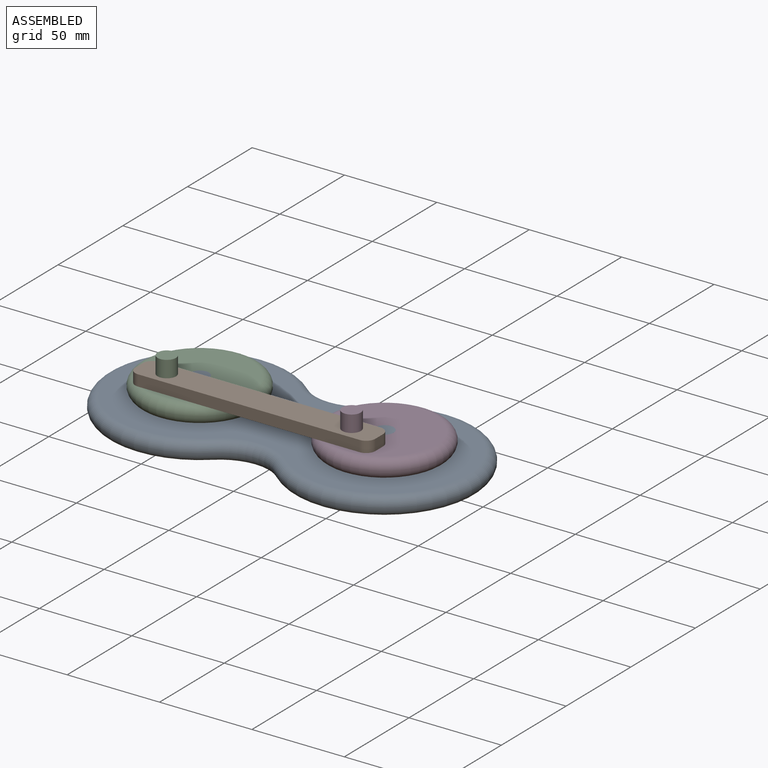
[diagram: assembled view]
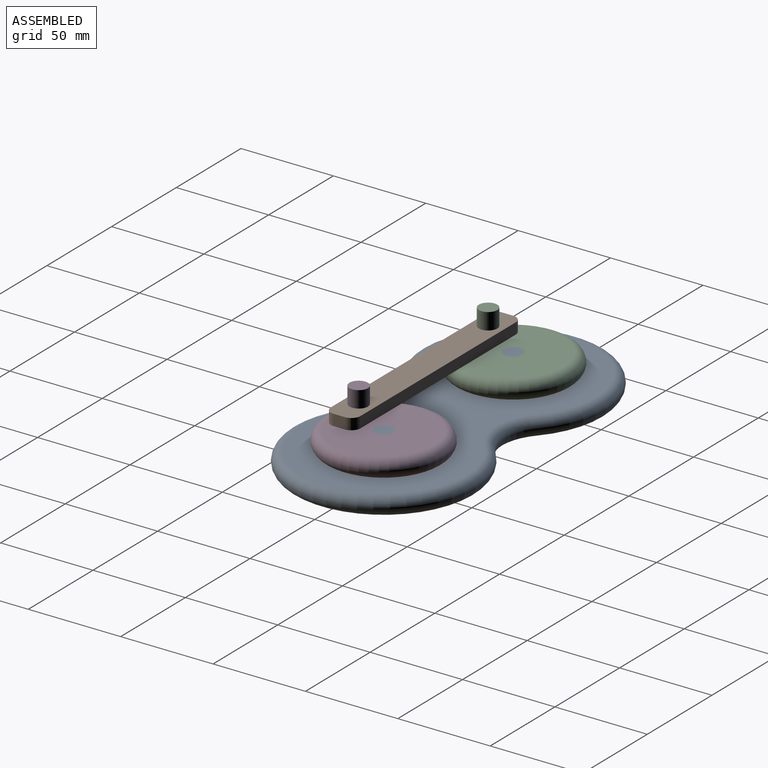
[diagram: assembled view, second angle]
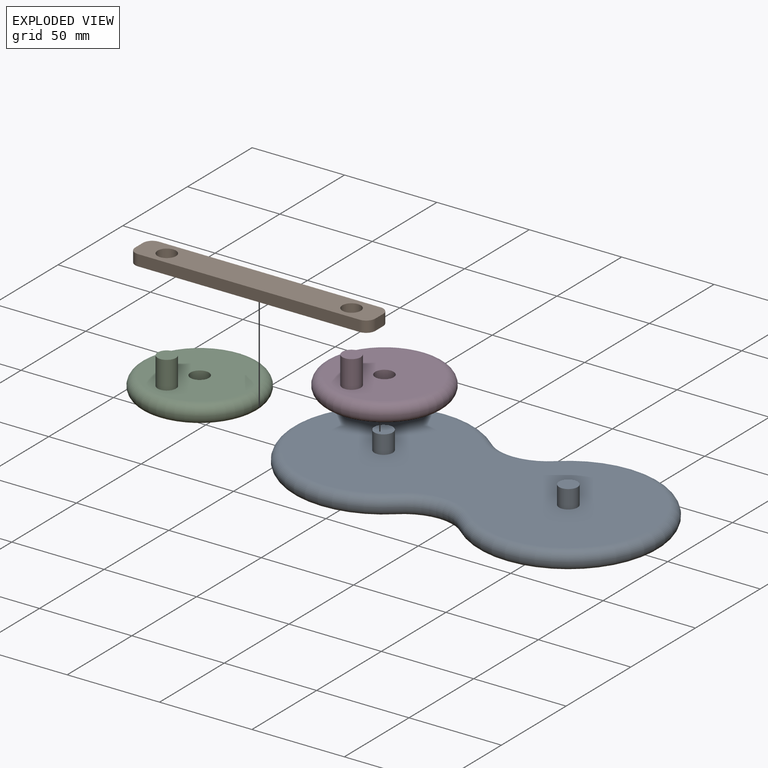
[diagram: exploded view]
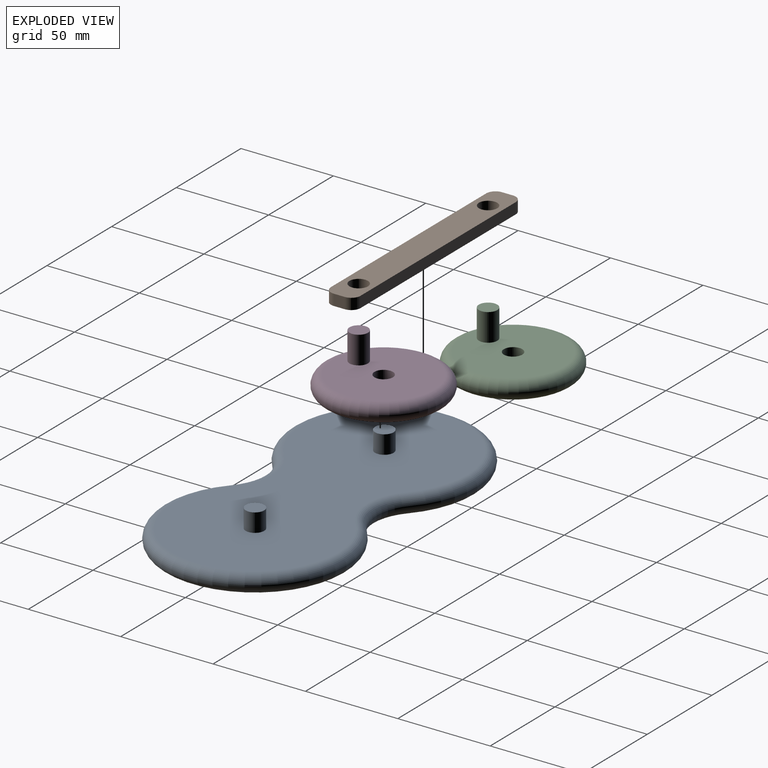
[diagram: exploded view, second angle]
ASSEMBLY  parts=4 mates=4
PART A: 10 faces, bbox 208.2x108.2x20 mm
  f0: plane 190x90mm, normal (0,0,1), area 13436.7mm2, adj f2,f4,f6,f7,f8,f9
  f1: plane 190x90mm, normal (0,0,-1), area 13593.8mm2, adj f6,f7,f8,f9
  f2: cylinder r=5mm len=10mm, axis (0,0,-1), area 314.2mm2, adj f0,f3
  f3: plane 10x10mm, normal (0,0,1), area 78.5mm2, adj f2
  f4: cylinder r=5mm len=10mm, axis (0,0,-1), area 314.2mm2, adj f0,f5
  f5: plane 10x10mm, normal (0,0,1), area 78.5mm2, adj f4
  f6: torus R=45mm, axis (0,0,1), area 3482.3mm2, adj f0,f1,f7,f8
  f7: torus R=30mm, axis (0,0,1), area 614.8mm2, adj f0,f1,f6,f9
  f8: torus R=30mm, axis (0,0,1), area 614.8mm2, adj f0,f1,f6,f9
  f9: torus R=45mm, axis (0,0,1), area 3482.3mm2, adj f0,f1,f7,f8
PART B: 12 faces, bbox 130x16x6 mm
  f0: plane 120x6mm, normal (0,1,0), area 720mm2, adj f4,f5,f8,f11
  f1: plane 6x6mm, normal (-1,0,0), area 36mm2, adj f4,f5,f8,f9
  f2: plane 120x6mm, normal (0,-1,0), area 720mm2, adj f4,f5,f9,f10
  f3: plane 6x6mm, normal (1,0,0), area 36mm2, adj f4,f5,f10,f11
  f4: plane 130x16mm, normal (0,0,1), area 1901.5mm2, adj f0,f1,f2,f3,f6,f7,f8,f9
  f5: plane 130x16mm, normal (0,0,-1), area 1901.5mm2, adj f0,f1,f2,f3,f6,f7,f8,f9
  f6: cylinder r=5mm len=10mm, axis (0,0,1), area 188.5mm2, adj f4,f5
  f7: cylinder r=5mm len=10mm, axis (0,0,1), area 188.5mm2, adj f4,f5
  f8: cylinder r=5mm len=6mm, axis (0,0,1), area 47.1mm2, adj f0,f1,f4,f5
  f9: cylinder r=5mm len=6mm, axis (0,0,-1), area 47.1mm2, adj f1,f2,f4,f5
  f10: cylinder r=5mm len=6mm, axis (0,0,1), area 47.1mm2, adj f2,f3,f4,f5
  f11: cylinder r=5mm len=6mm, axis (0,0,-1), area 47.1mm2, adj f0,f3,f4,f5
PART C: 6 faces, bbox 70.4x70.4x25 mm
  f0: cylinder r=5mm len=10mm, axis (0,0,-1), area 314.2mm2, adj f1,f2
  f1: plane 55x55mm, normal (0,0,1), area 2218.7mm2, adj f0,f3,f4
  f2: plane 55x55mm, normal (0,0,-1), area 2297.3mm2, adj f0,f3
  f3: torus R=27.5mm, axis (0,0,1), area 3028.3mm2, adj f1,f2
  f4: cylinder r=5mm len=15mm, axis (0,0,-1), area 471.2mm2, adj f1,f5
  f5: plane 10x10mm, normal (0,0,1), area 78.5mm2, adj f4
PART D: 6 faces, bbox 70.4x70.4x25 mm
  f0: cylinder r=5mm len=10mm, axis (0,0,-1), area 314.2mm2, adj f1,f2
  f1: plane 55x55mm, normal (0,0,1), area 2218.7mm2, adj f0,f3,f4
  f2: plane 55x55mm, normal (0,0,-1), area 2297.3mm2, adj f0,f3
  f3: torus R=27.5mm, axis (0,0,1), area 3028.3mm2, adj f1,f2
  f4: cylinder r=5mm len=15mm, axis (0,0,-1), area 471.2mm2, adj f1,f5
  f5: plane 10x10mm, normal (0,0,1), area 78.5mm2, adj f4
PLACE A at identity fixed
PLACE B t=(-25.1,-17.33,0)mm
PLACE C rot(axis=(0,0,-1),107.8deg) t=(-69.6,-50.77,0)mm
PLACE D rot(axis=(0,0,-1),107.8deg) t=(60.94,44.45,0)mm
MATE revolute B.f6 <-> D.f4  axis (0,0,-1) through (41.09,-17.44,20)mm
MATE revolute B.f7 <-> C.f4  axis (0,0,-1) through (-58.91,-17.44,20)mm
MATE revolute C.f0 <-> A.f4  axis (0,0,-1) through (-53.31,0,10)mm
MATE revolute D.f0 <-> A.f2  axis (0,0,-1) through (46.69,0,10)mm
